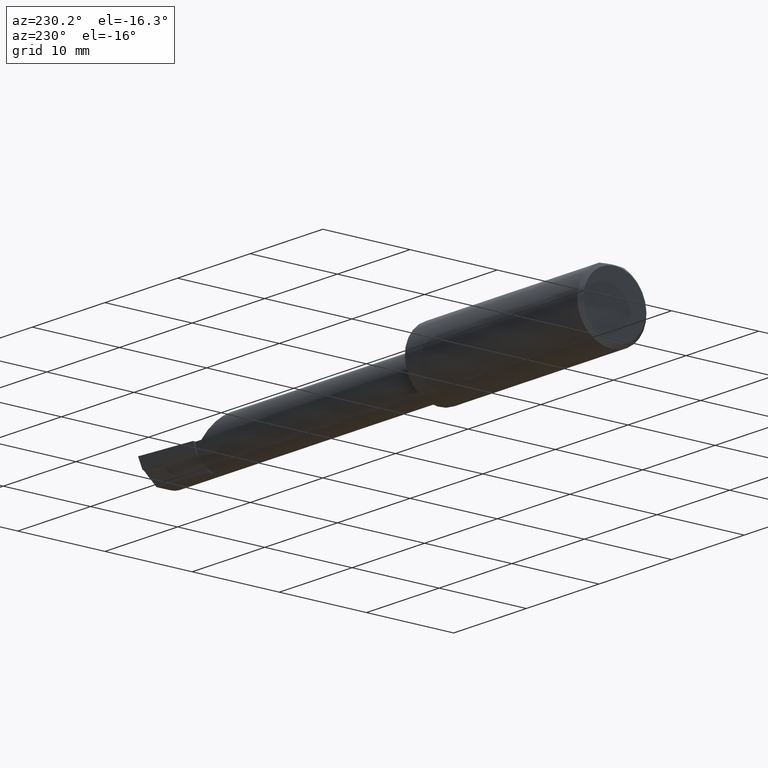
[diagram: clean part render]
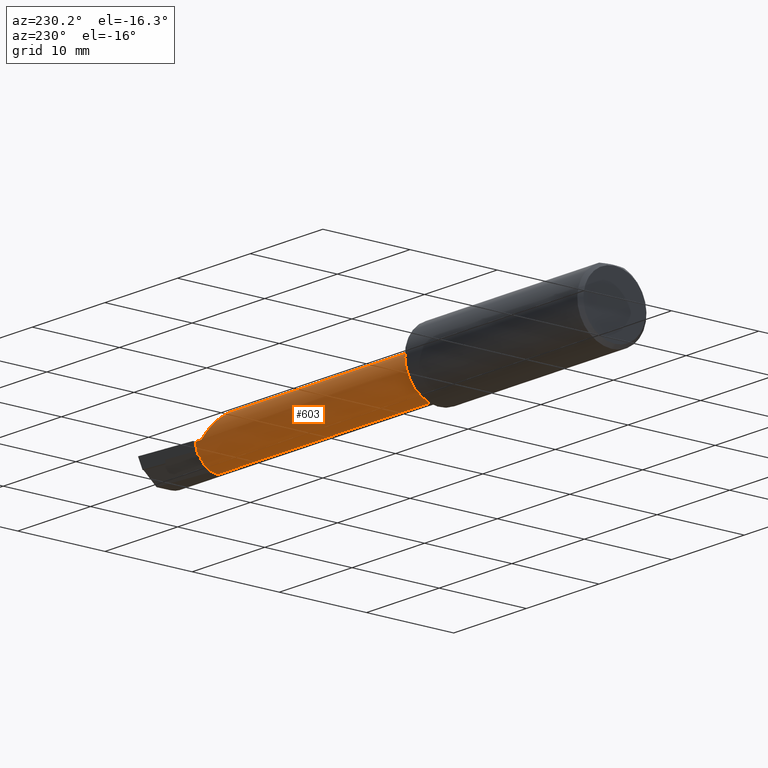
[diagram: same view with one face highlighted and labeled with its STEP entity id]
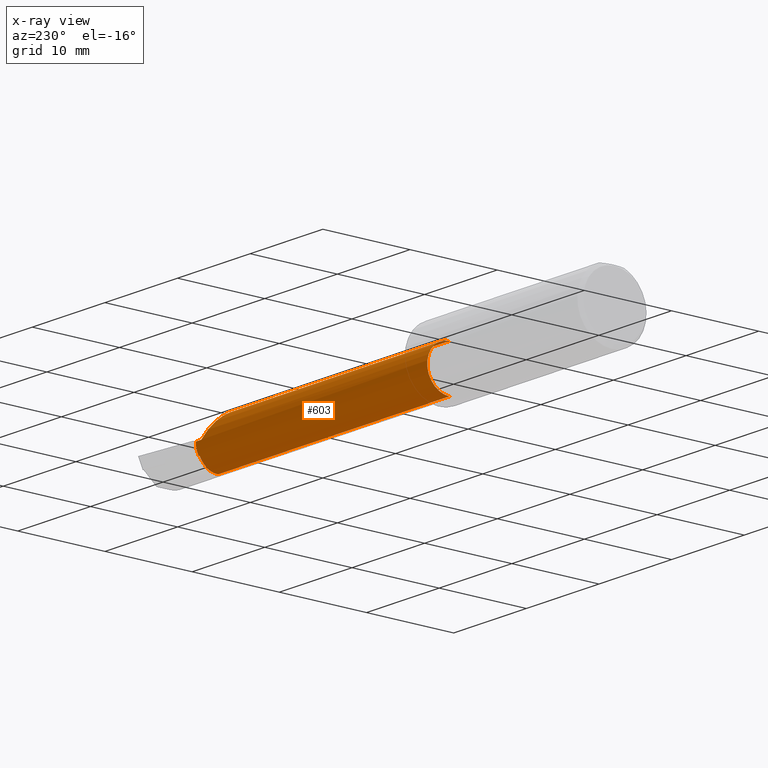
[diagram: x-ray of the same camera — body ghosted, the highlighted face saturated]
A machine part, auxiliary view. The second image highlights one B-rep face of the part: STEP entity #603.
The next image is the same camera in x-ray: the body ghosted, the highlighted face saturated — about 0% of this face is hidden behind the body in this view.
In plain terms, the highlighted cylindrical surface (edge-blend (fillet) strip) has radius 2.54 mm, axis along (-1, -0, -0).
Its self-contained STEP definition (entity closure, byte-faithful):
#1 = CARTESIAN_POINT ( 'NONE',  ( 56.64199999999999591, -0.3352786765604253705, -2.155498607722263316 ) ) ;
#22 = CARTESIAN_POINT ( 'NONE',  ( 56.60650789487561951, -0.3438671563499280937, -2.160828660988213468 ) ) ;
#31 = DIRECTION ( 'NONE',  ( -1.000000000000000000, -0.000000000000000000, -0.000000000000000000 ) ) ;
#42 = EDGE_CURVE ( 'NONE', #381, #231, #195, .T. ) ;
#53 = CARTESIAN_POINT ( 'NONE',  ( 24.76500000000000057, -1.678939999999999433, 2.540000000000000036 ) ) ;
#65 = CARTESIAN_POINT ( 'NONE',  ( 55.88000000000000256, 0.8610600000000002696, -8.673617379884035472E-16 ) ) ;
#66 = ORIENTED_EDGE ( 'NONE', *, *, #755, .F. ) ;
#74 = CIRCLE ( 'NONE', #843, 2.540000000000000036 ) ;
#89 = ORIENTED_EDGE ( 'NONE', *, *, #355, .T. ) ;
#90 = EDGE_LOOP ( 'NONE', ( #376, #544, #979, #338, #411, #715, #89, #1087, #1039, #66, #277 ) ) ;
#95 = CARTESIAN_POINT ( 'NONE',  ( 24.76500000000000057, -1.678939999999999433, 0.000000000000000000 ) ) ;
#113 = DIRECTION ( 'NONE',  ( 0.000000000000000000, 0.000000000000000000, 1.000000000000000000 ) ) ;
#116 = CARTESIAN_POINT ( 'NONE',  ( 56.52208028681336316, 0.5329470779028427918, -1.248661505215254097 ) ) ;
#131 = VERTEX_POINT ( 'NONE', #116 ) ;
#140 = LINE ( 'NONE', #1092, #299 ) ;
#195 = LINE ( 'NONE', #582, #217 ) ;
#198 = CARTESIAN_POINT ( 'NONE',  ( 56.61843269633380515, -0.3410007964591657559, -2.159057674088894263 ) ) ;
#212 = DIRECTION ( 'NONE',  ( 0.000000000000000000, 0.000000000000000000, 1.000000000000000000 ) ) ;
#217 = VECTOR ( 'NONE', #1052, 1000.000000000000000 ) ;
#218 = CARTESIAN_POINT ( 'NONE',  ( 56.63026341365514327, -0.3381379660845336699, -2.157280987322183208 ) ) ;
#220 = DIRECTION ( 'NONE',  ( 0.000000000000000000, 0.000000000000000000, 1.000000000000000000 ) ) ;
#231 = VERTEX_POINT ( 'NONE', #53 ) ;
#277 = ORIENTED_EDGE ( 'NONE', *, *, #1203, .F. ) ;
#286 = CARTESIAN_POINT ( 'NONE',  ( 24.12999999999999901, -1.678939999999999211, -2.540000000000000036 ) ) ;
#296 = CARTESIAN_POINT ( 'NONE',  ( 56.64199999999999591, -0.3352786765604253705, -2.155498607722263316 ) ) ;
#299 = VECTOR ( 'NONE', #431, 1000.000000000000000 ) ;
#306 = CARTESIAN_POINT ( 'NONE',  ( 55.88000000000000256, 0.8610587299996853572, 0.002539999999979711265 ) ) ;
#312 = CARTESIAN_POINT ( 'NONE',  ( 53.34253999999999252, -1.678939999999999433, 2.540000000000000036 ) ) ;
#316 =( BOUNDED_CURVE ( )  B_SPLINE_CURVE ( 3, ( #1201, #624, #813, #332 ),
 .UNSPECIFIED., .F., .F. ) 
 B_SPLINE_CURVE_WITH_KNOTS ( ( 4, 4 ),
 ( 4.479557257772967205, 4.982985725396996912 ),
 .UNSPECIFIED. ) 
 CURVE ( )  GEOMETRIC_REPRESENTATION_ITEM ( )  RATIONAL_B_SPLINE_CURVE ( ( 1.000000000000000000, 0.9789912600431243117, 0.9789912600431243117, 1.000000000000000000 ) ) 
 REPRESENTATION_ITEM ( '' )  );
#332 = CARTESIAN_POINT ( 'NONE',  ( 56.52208028681336316, 0.5329470779028427918, -1.248661505215254097 ) ) ;
#338 = ORIENTED_EDGE ( 'NONE', *, *, #42, .F. ) ;
#349 = EDGE_CURVE ( 'NONE', #383, #447, #74, .T. ) ;
#355 = EDGE_CURVE ( 'NONE', #876, #383, #140, .T. ) ;
#376 = ORIENTED_EDGE ( 'NONE', *, *, #1106, .T. ) ;
#381 = VERTEX_POINT ( 'NONE', #435 ) ;
#383 = VERTEX_POINT ( 'NONE', #775 ) ;
#396 = CIRCLE ( 'NONE', #1088, 2.540000000000000036 ) ;
#407 = CARTESIAN_POINT ( 'NONE',  ( 56.64199999999999591, -1.678939999999999433, 0.000000000000000000 ) ) ;
#411 = ORIENTED_EDGE ( 'NONE', *, *, #1138, .F. ) ;
#431 = DIRECTION ( 'NONE',  ( 1.000000000000000000, 0.000000000000000000, 0.000000000000000000 ) ) ;
#435 = CARTESIAN_POINT ( 'NONE',  ( 53.34253999999999252, -1.678939999999999433, 2.540000000000000036 ) ) ;
#442 = EDGE_CURVE ( 'NONE', #563, #231, #1219, .T. ) ;
#445 =( BOUNDED_CURVE ( )  B_SPLINE_CURVE ( 3, ( #1227, #765, #460, #845 ),
 .UNSPECIFIED., .F., .T. ) 
 B_SPLINE_CURVE_WITH_KNOTS ( ( 4, 4 ),
 ( 2.885266815324717626, 2.898469550304956233 ),
 .UNSPECIFIED. ) 
 CURVE ( )  GEOMETRIC_REPRESENTATION_ITEM ( )  RATIONAL_B_SPLINE_CURVE ( ( 1.000000000000000000, 0.9999854740351713511, 0.9999854740351713511, 1.000000000000000000 ) ) 
 REPRESENTATION_ITEM ( '' )  );
#447 = VERTEX_POINT ( 'NONE', #472 ) ;
#454 = DIRECTION ( 'NONE',  ( -1.000000000000000000, -0.000000000000000000, -0.000000000000000000 ) ) ;
#460 = CARTESIAN_POINT ( 'NONE',  ( 56.60306167935599575, 0.5218923600378170269, -1.268093797621265173 ) ) ;
#472 = CARTESIAN_POINT ( 'NONE',  ( 56.64199999999999591, 0.5162690332466178811, -1.277754788820004483 ) ) ;
#474 = VERTEX_POINT ( 'NONE', #950 ) ;
#501 = DIRECTION ( 'NONE',  ( -1.000000000000000000, -0.000000000000000000, -0.000000000000000000 ) ) ;
#521 = CIRCLE ( 'NONE', #1169, 2.540000000000000036 ) ;
#530 = VERTEX_POINT ( 'NONE', #296 ) ;
#544 = ORIENTED_EDGE ( 'NONE', *, *, #990, .T. ) ;
#563 = VERTEX_POINT ( 'NONE', #1070 ) ;
#572 = EDGE_CURVE ( 'NONE', #1175, #876, #521, .T. ) ;
#573 =( BOUNDED_CURVE ( )  B_SPLINE_CURVE ( 3, ( #306, #595, #895, #312 ),
 .UNSPECIFIED., .F., .F. ) 
 B_SPLINE_CURVE_WITH_KNOTS ( ( 4, 4 ),
 ( 4.713388980551348695, 6.283185307179586232 ),
 .UNSPECIFIED. ) 
 CURVE ( )  GEOMETRIC_REPRESENTATION_ITEM ( )  RATIONAL_B_SPLINE_CURVE ( ( 1.000000000000000000, 0.8049734974886378902, 0.8049734974886378902, 1.000000000000000000 ) ) 
 REPRESENTATION_ITEM ( '' )  );
#582 = CARTESIAN_POINT ( 'NONE',  ( 24.12999999999999901, -1.678939999999999433, 2.540000000000000036 ) ) ;
#595 = CARTESIAN_POINT ( 'NONE',  ( 54.39328266747760665, 0.8595720119238138279, 1.489257332522372135 ) ) ;
#603 = ADVANCED_FACE ( 'NONE', ( #986 ), #1161, .T. ) ;
#624 = CARTESIAN_POINT ( 'NONE',  ( 56.57853211268948712, 0.02262286437494908514, -1.934391978167296466 ) ) ;
#670 = DIRECTION ( 'NONE',  ( -1.000000000000000000, -0.000000000000000000, -0.000000000000000000 ) ) ;
#715 = ORIENTED_EDGE ( 'NONE', *, *, #572, .T. ) ;
#720 = AXIS2_PLACEMENT_3D ( 'NONE', #1079, #31, #212 ) ;
#738 = CARTESIAN_POINT ( 'NONE',  ( 56.64199999999999591, -1.678939999999999433, 0.000000000000000000 ) ) ;
#755 = EDGE_CURVE ( 'NONE', #985, #131, #316, .T. ) ;
#765 = CARTESIAN_POINT ( 'NONE',  ( 56.56308786096884944, 0.5274517890126287911, -1.258395895548297228 ) ) ;
#775 = CARTESIAN_POINT ( 'NONE',  ( 56.64199999999999591, 0.8610600000000002696, -8.673617379884035472E-16 ) ) ;
#779 = VECTOR ( 'NONE', #670, 1000.000000000000000 ) ;
#781 = CARTESIAN_POINT ( 'NONE',  ( 55.88000000000000256, 0.8610587299996853572, 0.002539999999979711265 ) ) ;
#783 = AXIS2_PLACEMENT_3D ( 'NONE', #95, #846, #1043 ) ;
#813 = CARTESIAN_POINT ( 'NONE',  ( 56.54978564970318189, 0.3211662971372761799, -1.623811351964777883 ) ) ;
#840 = DIRECTION ( 'NONE',  ( 0.000000000000000000, 0.000000000000000000, 1.000000000000000000 ) ) ;
#843 = AXIS2_PLACEMENT_3D ( 'NONE', #738, #454, #840 ) ;
#845 = CARTESIAN_POINT ( 'NONE',  ( 56.64199999999999591, 0.5162690332466178811, -1.277754788820004483 ) ) ;
#846 = DIRECTION ( 'NONE',  ( 1.000000000000000000, 0.000000000000000000, 0.000000000000000000 ) ) ;
#876 = VERTEX_POINT ( 'NONE', #65 ) ;
#895 = CARTESIAN_POINT ( 'NONE',  ( 53.34253999999997831, -0.1922219241183829586, 2.540000000000000036 ) ) ;
#950 = CARTESIAN_POINT ( 'NONE',  ( 56.64199999999999591, -1.678939999999999433, -2.540000000000000480 ) ) ;
#962 = EDGE_CURVE ( 'NONE', #131, #447, #445, .T. ) ;
#964 = DIRECTION ( 'NONE',  ( -1.000000000000000000, -0.000000000000000000, -0.000000000000000000 ) ) ;
#977 = CARTESIAN_POINT ( 'NONE',  ( 55.88000000000000256, -1.678939999999999433, 0.000000000000000000 ) ) ;
#979 = ORIENTED_EDGE ( 'NONE', *, *, #442, .T. ) ;
#985 = VERTEX_POINT ( 'NONE', #1127 ) ;
#986 = FACE_OUTER_BOUND ( 'NONE', #90, .T. ) ;
#990 = EDGE_CURVE ( 'NONE', #474, #563, #1139, .T. ) ;
#1039 = ORIENTED_EDGE ( 'NONE', *, *, #962, .F. ) ;
#1043 = DIRECTION ( 'NONE',  ( 0.000000000000000000, 0.000000000000000000, -1.000000000000000000 ) ) ;
#1052 = DIRECTION ( 'NONE',  ( -1.000000000000000000, -0.000000000000000000, -0.000000000000000000 ) ) ;
#1070 = CARTESIAN_POINT ( 'NONE',  ( 24.76500000000000057, -1.678939999999999211, -2.540000000000000036 ) ) ;
#1078 =( BOUNDED_CURVE ( )  B_SPLINE_CURVE ( 3, ( #1, #218, #198, #22 ),
 .UNSPECIFIED., .F., .T. ) 
 B_SPLINE_CURVE_WITH_KNOTS ( ( 4, 4 ),
 ( 3.384715756874630443, 3.388695282948744669 ),
 .UNSPECIFIED. ) 
 CURVE ( )  GEOMETRIC_REPRESENTATION_ITEM ( )  RATIONAL_B_SPLINE_CURVE ( ( 1.000000000000000000, 0.9999986802814542219, 0.9999986802814542219, 1.000000000000000000 ) ) 
 REPRESENTATION_ITEM ( '' )  );
#1079 = CARTESIAN_POINT ( 'NONE',  ( 24.12999999999999901, -1.678939999999999433, 0.000000000000000000 ) ) ;
#1087 = ORIENTED_EDGE ( 'NONE', *, *, #349, .T. ) ;
#1088 = AXIS2_PLACEMENT_3D ( 'NONE', #407, #964, #113 ) ;
#1092 = CARTESIAN_POINT ( 'NONE',  ( 24.12999999999999901, 0.8610600000000002696, -8.673617379884035472E-16 ) ) ;
#1106 = EDGE_CURVE ( 'NONE', #530, #474, #396, .T. ) ;
#1127 = CARTESIAN_POINT ( 'NONE',  ( 56.60650789487561951, -0.3438671563499280937, -2.160828660988213468 ) ) ;
#1138 = EDGE_CURVE ( 'NONE', #1175, #381, #573, .T. ) ;
#1139 = LINE ( 'NONE', #286, #779 ) ;
#1161 = CYLINDRICAL_SURFACE ( 'NONE', #720, 2.540000000000000036 ) ;
#1169 = AXIS2_PLACEMENT_3D ( 'NONE', #977, #501, #220 ) ;
#1175 = VERTEX_POINT ( 'NONE', #781 ) ;
#1201 = CARTESIAN_POINT ( 'NONE',  ( 56.60650789487561951, -0.3438671563499280937, -2.160828660988213468 ) ) ;
#1203 = EDGE_CURVE ( 'NONE', #530, #985, #1078, .T. ) ;
#1219 = CIRCLE ( 'NONE', #783, 2.540000000000000036 ) ;
#1227 = CARTESIAN_POINT ( 'NONE',  ( 56.52208028681336316, 0.5329470779028427918, -1.248661505215254097 ) ) ;